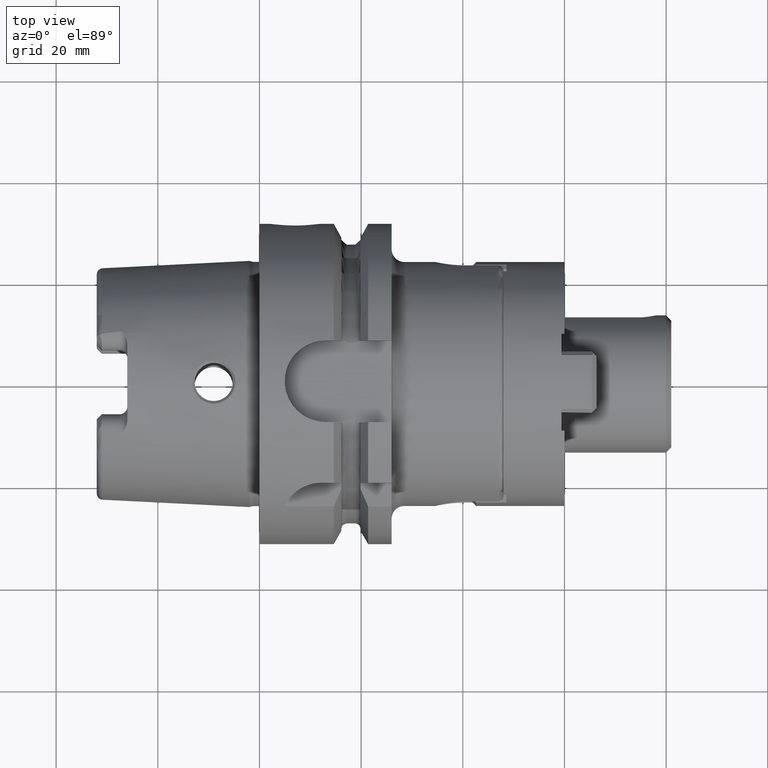
[diagram: clean part render]
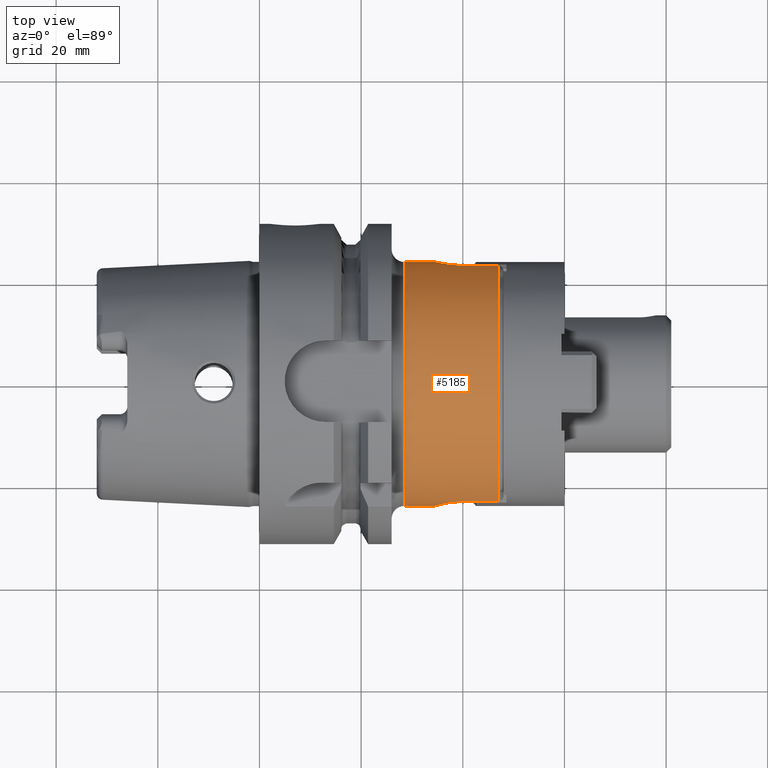
[diagram: same view with one face highlighted and labeled with its STEP entity id]
A machine part, top view. The second image highlights one B-rep face of the part: STEP entity #5185.
In plain terms, the highlighted cylindrical surface (partial cylindrical patch) has radius 24 mm, axis along (1, 0, 0).
Its self-contained STEP definition (entity closure, byte-faithful):
#1586=CARTESIAN_POINT('',(3.45E1,-2.4E1,-2.786071262096E-14));
#1587=CARTESIAN_POINT('',(3.45E1,-2.4E1,2.653780109723E-1));
#1588=CARTESIAN_POINT('',(3.453439012447E1,-2.399129399183E1,
7.950238607074E-1));
#1589=CARTESIAN_POINT('',(3.469552093769E1,-2.395116597375E1,1.597797598090E0));
#1590=CARTESIAN_POINT('',(3.496410475327E1,-2.388657366519E1,2.370465442518E0));
#1591=CARTESIAN_POINT('',(3.532642378748E1,-2.380402494891E1,3.086646769512E0));
#1592=CARTESIAN_POINT('',(3.577377950145E1,-2.370934924185E1,3.741716982474E0));
#1593=CARTESIAN_POINT('',(3.630556313486E1,-2.360737538189E1,4.335761019418E0));
#1594=CARTESIAN_POINT('',(3.690735747638E1,-2.350612028149E1,4.851741710823E0));
#1595=CARTESIAN_POINT('',(3.756085100699E1,-2.341328242579E1,5.279139465108E0));
#1596=CARTESIAN_POINT('',(3.826203661490E1,-2.333367507253E1,5.618691562399E0));
#1597=CARTESIAN_POINT('',(3.900160812379E1,-2.327240693968E1,5.865887275414E0));
#1598=CARTESIAN_POINT('',(3.976989306155E1,-2.323373399564E1,6.016364218982E0));
#1599=CARTESIAN_POINT('',(4.028821901499E1,-2.322493272326E1,6.05E0));
#1600=CARTESIAN_POINT('',(4.055E1,-2.322493272326E1,6.05E0));
#1602=CARTESIAN_POINT('',(2.85E1,0.E0,0.E0));
#1603=DIRECTION('',(1.E0,0.E0,0.E0));
#1604=DIRECTION('',(0.E0,-1.707606123452E-6,9.999999999985E-1));
#1605=AXIS2_PLACEMENT_3D('',#1602,#1603,#1604);
#1607=CARTESIAN_POINT('',(2.85E1,0.E0,0.E0));
#1608=DIRECTION('',(1.E0,0.E0,0.E0));
#1609=DIRECTION('',(0.E0,1.E0,0.E0));
#1610=AXIS2_PLACEMENT_3D('',#1607,#1608,#1609);
#1612=CARTESIAN_POINT('',(4.055E1,2.322493272326E1,6.05E0));
#1613=CARTESIAN_POINT('',(4.028821707032E1,2.322493272326E1,6.05E0));
#1614=CARTESIAN_POINT('',(3.976988711407E1,2.323373426577E1,6.016363133370E0));
#1615=CARTESIAN_POINT('',(3.900160870212E1,2.327240676999E1,5.865888070273E0));
#1616=CARTESIAN_POINT('',(3.826201763306E1,2.333367698096E1,5.618683500776E0));
#1617=CARTESIAN_POINT('',(3.756085343739E1,2.341328209082E1,5.279141225444E0));
#1618=CARTESIAN_POINT('',(3.690732937494E1,2.350612446973E1,4.851721573757E0));
#1619=CARTESIAN_POINT('',(3.630553766015E1,2.360737990316E1,4.335738043097E0));
#1620=CARTESIAN_POINT('',(3.577373982194E1,2.370935739182E1,3.741662876004E0));
#1621=CARTESIAN_POINT('',(3.532643392008E1,2.380402279056E1,3.086664036689E0));
#1622=CARTESIAN_POINT('',(3.496407843177E1,2.388657972324E1,2.370407350562E0));
#1623=CARTESIAN_POINT('',(3.469551777483E1,2.395116682984E1,1.597780745449E0));
#1624=CARTESIAN_POINT('',(3.453438456689E1,2.399129536272E1,7.949861845706E-1));
#1625=CARTESIAN_POINT('',(3.45E1,2.4E1,2.653636233119E-1));
#1626=CARTESIAN_POINT('',(3.45E1,2.4E1,0.E0));
#1628=DIRECTION('',(1.E0,0.E0,0.E0));
#1629=VECTOR('',#1628,6.45E0);
#1630=CARTESIAN_POINT('',(4.055E1,2.322493272326E1,6.05E0));
#1631=LINE('',#1630,#1629);
#1632=CARTESIAN_POINT('',(4.7E1,0.E0,0.E0));
#1633=DIRECTION('',(-1.E0,0.E0,0.E0));
#1634=DIRECTION('',(0.E0,-9.677055301359E-1,2.520833333333E-1));
#1635=AXIS2_PLACEMENT_3D('',#1632,#1633,#1634);
#1637=DIRECTION('',(1.E0,0.E0,0.E0));
#1638=VECTOR('',#1637,6.45E0);
#1639=CARTESIAN_POINT('',(4.055E1,-2.322493272326E1,6.05E0));
#1640=LINE('',#1639,#1638);
#1998=DIRECTION('',(-1.E0,0.E0,2.896846252742E-13));
#1999=VECTOR('',#1998,6.E0);
#2000=CARTESIAN_POINT('',(3.45E1,2.4E1,0.E0));
#2001=LINE('',#2000,#1999);
#2002=DIRECTION('',(-1.E0,0.E0,-4.300885811006E-13));
#2003=VECTOR('',#2002,6.E0);
#2004=CARTESIAN_POINT('',(3.45E1,-2.4E1,-2.786071262096E-14));
#2005=LINE('',#2004,#2003);
#3425=CARTESIAN_POINT('',(2.85E1,2.4E1,0.E0));
#3426=CARTESIAN_POINT('',(2.85E1,-4.098254696284E-5,2.399999999997E1));
#3427=VERTEX_POINT('',#3425);
#3428=VERTEX_POINT('',#3426);
#3459=VERTEX_POINT('',#1612);
#3460=VERTEX_POINT('',#1626);
#3461=CARTESIAN_POINT('',(4.7E1,2.322493272326E1,6.05E0));
#3462=VERTEX_POINT('',#3461);
#3476=CARTESIAN_POINT('',(4.055E1,-2.322493272326E1,6.05E0));
#3477=VERTEX_POINT('',#3476);
#3482=VERTEX_POINT('',#1586);
#3483=CARTESIAN_POINT('',(4.7E1,-2.322493272326E1,6.05E0));
#3484=VERTEX_POINT('',#3483);
#3487=CARTESIAN_POINT('',(2.85E1,-2.4E1,-2.608392199224E-12));
#3488=VERTEX_POINT('',#3487);
#5162=CARTESIAN_POINT('',(2.325E1,0.E0,0.E0));
#5163=DIRECTION('',(1.E0,0.E0,0.E0));
#5164=DIRECTION('',(0.E0,-1.E0,0.E0));
#5165=AXIS2_PLACEMENT_3D('',#5162,#5163,#5164);
#5166=CYLINDRICAL_SURFACE('',#5165,2.4E1);
#5168=ORIENTED_EDGE('',*,*,#5167,.F.);
#5170=ORIENTED_EDGE('',*,*,#5169,.T.);
#5171=ORIENTED_EDGE('',*,*,#5153,.F.);
#5172=ORIENTED_EDGE('',*,*,#5058,.F.);
#5174=ORIENTED_EDGE('',*,*,#5173,.F.);
#5176=ORIENTED_EDGE('',*,*,#5175,.F.);
#5178=ORIENTED_EDGE('',*,*,#5177,.T.);
#5180=ORIENTED_EDGE('',*,*,#5179,.F.);
#5182=ORIENTED_EDGE('',*,*,#5181,.F.);
#5183=EDGE_LOOP('',(#5168,#5170,#5171,#5172,#5174,#5176,#5178,#5180,#5182));
#5184=FACE_OUTER_BOUND('',#5183,.F.);
#5185=ADVANCED_FACE('',(#5184),#5166,.T.);
#1601=B_SPLINE_CURVE_WITH_KNOTS('',3,(#1586,#1587,#1588,#1589,#1590,#1591,#1592,
#1593,#1594,#1595,#1596,#1597,#1598,#1599,#1600),.UNSPECIFIED.,.F.,.F.,(4,1,1,1,
1,1,1,1,1,1,1,1,4),(0.E0,8.333333333333E-2,1.666666666667E-1,2.5E-1,
3.333333333333E-1,4.166666666667E-1,5.E-1,5.833333333333E-1,6.666666666667E-1,
7.5E-1,8.333333333333E-1,9.166666666667E-1,1.E0),.UNSPECIFIED.);
#1606=CIRCLE('',#1605,2.4E1);
#1611=CIRCLE('',#1610,2.4E1);
#1627=B_SPLINE_CURVE_WITH_KNOTS('',3,(#1612,#1613,#1614,#1615,#1616,#1617,#1618,
#1619,#1620,#1621,#1622,#1623,#1624,#1625,#1626),.UNSPECIFIED.,.F.,.F.,(4,1,1,1,
1,1,1,1,1,1,1,1,4),(0.E0,8.333333333333E-2,1.666666666667E-1,2.5E-1,
3.333333333333E-1,4.166666666667E-1,5.E-1,5.833333333333E-1,6.666666666667E-1,
7.5E-1,8.333333333333E-1,9.166666666667E-1,1.E0),.UNSPECIFIED.);
#1636=CIRCLE('',#1635,2.4E1);
#5058=EDGE_CURVE('',#3427,#3428,#1611,.T.);
#5153=EDGE_CURVE('',#3428,#3488,#1606,.T.);
#5167=EDGE_CURVE('',#3482,#3477,#1601,.T.);
#5169=EDGE_CURVE('',#3482,#3488,#2005,.T.);
#5173=EDGE_CURVE('',#3460,#3427,#2001,.T.);
#5175=EDGE_CURVE('',#3459,#3460,#1627,.T.);
#5177=EDGE_CURVE('',#3459,#3462,#1631,.T.);
#5179=EDGE_CURVE('',#3484,#3462,#1636,.T.);
#5181=EDGE_CURVE('',#3477,#3484,#1640,.T.);